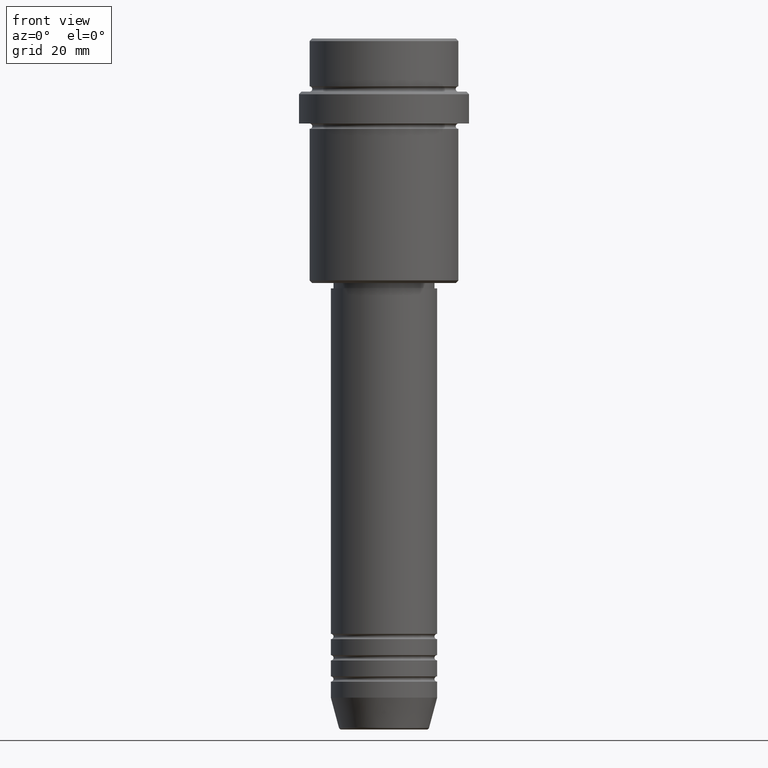
[diagram: clean part render]
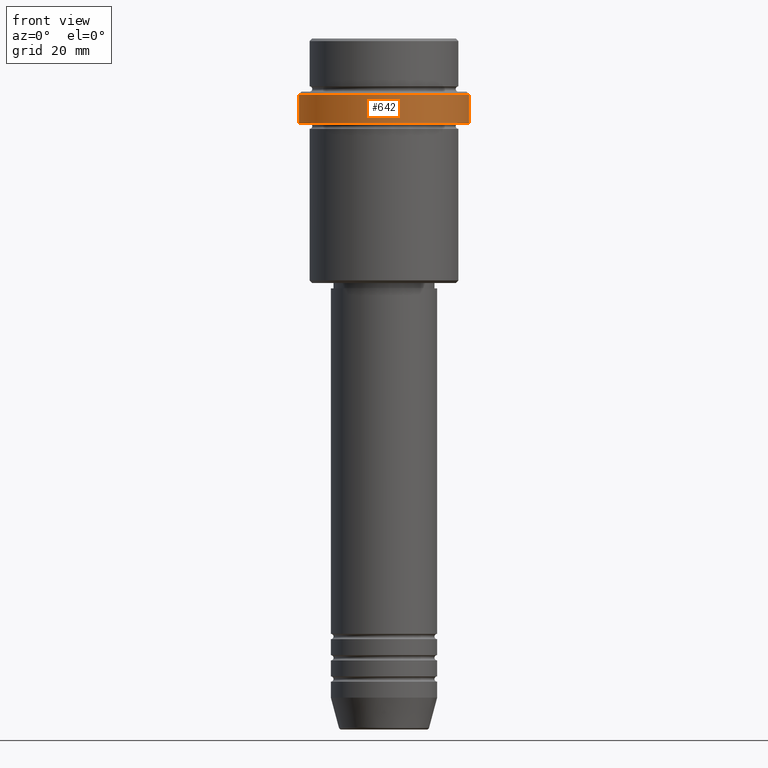
[diagram: same view with one face highlighted and labeled with its STEP entity id]
A machine part, front view. The second image highlights one B-rep face of the part: STEP entity #642.
In plain terms, the highlighted cylindrical surface (partial cylindrical patch) has radius 16 mm, axis along (-0, -0, 1).
Its self-contained STEP definition (entity closure, byte-faithful):
#26 = CARTESIAN_POINT ( 'NONE',  ( 15.99999999999998579, 0.000000000000000000, -16.00000000000000000 ) ) ;
#48 = ORIENTED_EDGE ( 'NONE', *, *, #79, .T. ) ;
#53 = DIRECTION ( 'NONE',  ( 0.000000000000000000, 0.000000000000000000, -1.000000000000000000 ) ) ;
#75 = ORIENTED_EDGE ( 'NONE', *, *, #1153, .F. ) ;
#79 = EDGE_CURVE ( 'NONE', #1217, #597, #733, .T. ) ;
#82 = DIRECTION ( 'NONE',  ( 1.000000000000000000, 0.000000000000000000, 0.000000000000000000 ) ) ;
#169 = ORIENTED_EDGE ( 'NONE', *, *, #898, .T. ) ;
#190 = DIRECTION ( 'NONE',  ( -0.000000000000000000, -0.000000000000000000, 1.000000000000000000 ) ) ;
#219 = VECTOR ( 'NONE', #190, 1000.000000000000000 ) ;
#248 = VERTEX_POINT ( 'NONE', #1130 ) ;
#286 = VECTOR ( 'NONE', #721, 1000.000000000000000 ) ;
#321 = CARTESIAN_POINT ( 'NONE',  ( 0.000000000000000000, 0.000000000000000000, -16.00000000000000000 ) ) ;
#396 = ORIENTED_EDGE ( 'NONE', *, *, #1320, .T. ) ;
#397 = CARTESIAN_POINT ( 'NONE',  ( 15.99999999999998579, 0.000000000000000000, -10.49999999999999822 ) ) ;
#411 = LINE ( 'NONE', #956, #286 ) ;
#539 = AXIS2_PLACEMENT_3D ( 'NONE', #1031, #53, #705 ) ;
#597 = VERTEX_POINT ( 'NONE', #397 ) ;
#642 = ADVANCED_FACE ( 'NONE', ( #807 ), #1144, .T. ) ;
#705 = DIRECTION ( 'NONE',  ( 1.000000000000000000, 0.000000000000000000, 0.000000000000000000 ) ) ;
#714 = AXIS2_PLACEMENT_3D ( 'NONE', #321, #835, #82 ) ;
#721 = DIRECTION ( 'NONE',  ( -0.000000000000000000, -0.000000000000000000, 1.000000000000000000 ) ) ;
#733 = LINE ( 'NONE', #1168, #219 ) ;
#807 = FACE_OUTER_BOUND ( 'NONE', #1155, .T. ) ;
#835 = DIRECTION ( 'NONE',  ( -0.000000000000000000, -0.000000000000000000, 1.000000000000000000 ) ) ;
#877 = CIRCLE ( 'NONE', #714, 15.99999999999998579 ) ;
#898 = EDGE_CURVE ( 'NONE', #248, #1217, #877, .T. ) ;
#930 = DIRECTION ( 'NONE',  ( 1.000000000000000000, 0.000000000000000000, 0.000000000000000000 ) ) ;
#956 = CARTESIAN_POINT ( 'NONE',  ( -15.99999999999998579, 1.959434878635763554E-15, 0.000000000000000000 ) ) ;
#984 = CARTESIAN_POINT ( 'NONE',  ( -15.99999999999998579, 1.959434878635763554E-15, -10.49999999999999822 ) ) ;
#1031 = CARTESIAN_POINT ( 'NONE',  ( 0.000000000000000000, 0.000000000000000000, -10.49999999999999822 ) ) ;
#1069 = AXIS2_PLACEMENT_3D ( 'NONE', #1172, #1258, #930 ) ;
#1130 = CARTESIAN_POINT ( 'NONE',  ( -15.99999999999998579, 1.959434878635763554E-15, -16.00000000000000000 ) ) ;
#1144 = CYLINDRICAL_SURFACE ( 'NONE', #1069, 15.99999999999998579 ) ;
#1153 = EDGE_CURVE ( 'NONE', #248, #1179, #411, .T. ) ;
#1155 = EDGE_LOOP ( 'NONE', ( #75, #169, #48, #396 ) ) ;
#1168 = CARTESIAN_POINT ( 'NONE',  ( 15.99999999999998579, 0.000000000000000000, 0.000000000000000000 ) ) ;
#1172 = CARTESIAN_POINT ( 'NONE',  ( 0.000000000000000000, 0.000000000000000000, 0.000000000000000000 ) ) ;
#1179 = VERTEX_POINT ( 'NONE', #984 ) ;
#1217 = VERTEX_POINT ( 'NONE', #26 ) ;
#1227 = CIRCLE ( 'NONE', #539, 15.99999999999998579 ) ;
#1258 = DIRECTION ( 'NONE',  ( -0.000000000000000000, -0.000000000000000000, 1.000000000000000000 ) ) ;
#1320 = EDGE_CURVE ( 'NONE', #597, #1179, #1227, .T. ) ;